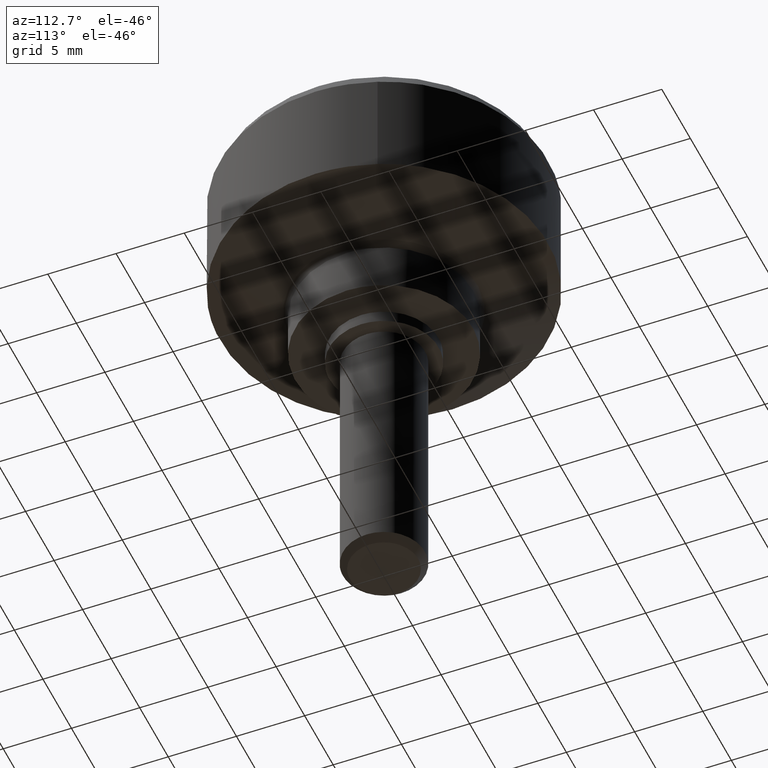
[diagram: clean part render]
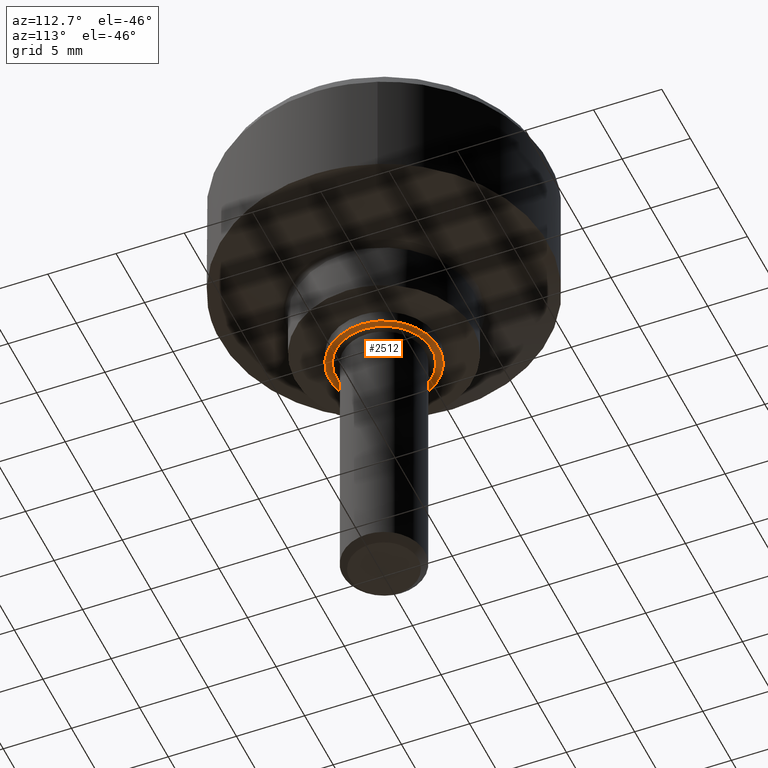
[diagram: same view with one face highlighted and labeled with its STEP entity id]
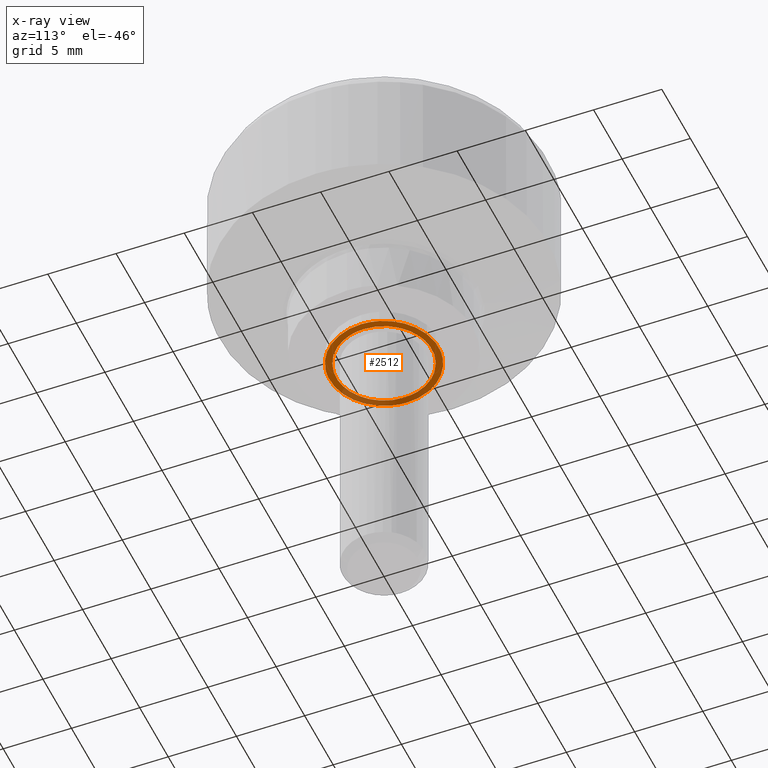
[diagram: x-ray of the same camera — body ghosted, the highlighted face saturated]
A machine part, auxiliary view. The second image highlights one B-rep face of the part: STEP entity #2512.
The next image is the same camera in x-ray: the body ghosted, the highlighted face saturated — about 27% of this face is hidden behind the body in this view.
In plain terms, the highlighted face is a freeform B-spline surface patch.
Its self-contained STEP definition (entity closure, byte-faithful):
#1094=CARTESIAN_POINT('',(-0.274603541583997,-3.489210927264015,-1.804112E-016));
#1095=VERTEX_POINT('',#1094);
#1101=CARTESIAN_POINT('',(-3.500000000000000,0.0,0.0));
#1102=VERTEX_POINT('',#1101);
#1103=CARTESIAN_POINT('',(-3.500000000000000,0.0,0.0));
#1104=CARTESIAN_POINT('',(-3.500000000000000,-3.235369784108316,0.0));
#1105=CARTESIAN_POINT('',(-0.274603541583997,-3.489210927264014,-1.804112E-016));
#1113=(BOUNDED_CURVE()B_SPLINE_CURVE(2,(#1103,#1104,#1105),.UNSPECIFIED.,.F.,.U.)B_SPLINE_CURVE_WITH_KNOTS((3,3),(0.0,0.236331462440237),.UNSPECIFIED.)CURVE()GEOMETRIC_REPRESENTATION_ITEM()RATIONAL_B_SPLINE_CURVE((1.0,0.723120469035954,0.969723693851907))REPRESENTATION_ITEM(''));
#1114=EDGE_CURVE('',#1102,#1095,#1113,.T.);
#1116=CARTESIAN_POINT('',(0.274603541583996,3.489210927264015,-7.355228E-016));
#1117=VERTEX_POINT('',#1116);
#1118=CARTESIAN_POINT('',(0.274603541583996,3.489210927264016,-7.355228E-016));
#1119=CARTESIAN_POINT('',(0.137513720153304,3.500000000000000,0.0));
#1120=CARTESIAN_POINT('',(0.0,3.500000000000000,0.0));
#1121=CARTESIAN_POINT('',(-3.500000000000000,3.500000000000000,0.0));
#1122=CARTESIAN_POINT('',(-3.500000000000000,0.0,0.0));
#1130=(BOUNDED_CURVE()B_SPLINE_CURVE(2,(#1118,#1119,#1120,#1121,#1122),.UNSPECIFIED.,.F.,.U.)B_SPLINE_CURVE_WITH_KNOTS((3,2,3),(0.736331462440237,0.750000000000000,1.0),.UNSPECIFIED.)CURVE()GEOMETRIC_REPRESENTATION_ITEM()RATIONAL_B_SPLINE_CURVE((0.969723693851907,0.983986312150594,1.0,0.707106781186547,1.0))REPRESENTATION_ITEM(''));
#1131=EDGE_CURVE('',#1117,#1102,#1130,.T.);
#1207=CARTESIAN_POINT('',(3.500000000000000,0.0,0.0));
#1208=VERTEX_POINT('',#1207);
#1209=CARTESIAN_POINT('',(3.500000000000000,0.0,0.0));
#1210=CARTESIAN_POINT('',(3.500000000000000,3.235369784108316,0.0));
#1211=CARTESIAN_POINT('',(0.274603541583996,3.489210927264016,-7.355228E-016));
#1219=(BOUNDED_CURVE()B_SPLINE_CURVE(2,(#1209,#1210,#1211),.UNSPECIFIED.,.F.,.U.)B_SPLINE_CURVE_WITH_KNOTS((3,3),(0.500000000000000,0.736331462440237),.UNSPECIFIED.)CURVE()GEOMETRIC_REPRESENTATION_ITEM()RATIONAL_B_SPLINE_CURVE((1.0,0.723120469035954,0.969723693851907))REPRESENTATION_ITEM(''));
#1220=EDGE_CURVE('',#1208,#1117,#1219,.T.);
#1222=CARTESIAN_POINT('',(-0.274603541583997,-3.489210927264014,-1.804112E-016));
#1223=CARTESIAN_POINT('',(-0.137513720153305,-3.500000000000000,0.0));
#1224=CARTESIAN_POINT('',(0.0,-3.500000000000000,0.0));
#1225=CARTESIAN_POINT('',(3.500000000000000,-3.500000000000000,0.0));
#1226=CARTESIAN_POINT('',(3.500000000000000,0.0,0.0));
#1234=(BOUNDED_CURVE()B_SPLINE_CURVE(2,(#1222,#1223,#1224,#1225,#1226),.UNSPECIFIED.,.F.,.U.)B_SPLINE_CURVE_WITH_KNOTS((3,2,3),(0.236331462440237,0.250000000000000,0.500000000000000),.UNSPECIFIED.)CURVE()GEOMETRIC_REPRESENTATION_ITEM()RATIONAL_B_SPLINE_CURVE((0.969723693851907,0.983986312150594,1.0,0.707106781186547,1.0))REPRESENTATION_ITEM(''));
#1235=EDGE_CURVE('',#1095,#1208,#1234,.T.);
#1301=CARTESIAN_POINT('',(0.244187562914090,-3.992539597057794,-4.336809E-017));
#1302=VERTEX_POINT('',#1301);
#1308=CARTESIAN_POINT('',(4.0,0.0,0.0));
#1309=VERTEX_POINT('',#1308);
#1310=CARTESIAN_POINT('',(4.0,0.0,0.0));
#1311=CARTESIAN_POINT('',(4.000000000000001,-3.762830495004439,0.0));
#1312=CARTESIAN_POINT('',(0.244187562914090,-3.992539597057794,-4.336809E-017));
#1320=(BOUNDED_CURVE()B_SPLINE_CURVE(2,(#1310,#1311,#1312),.UNSPECIFIED.,.F.,.U.)B_SPLINE_CURVE_WITH_KNOTS((3,3),(0.500000000000000,0.739333247269903),.UNSPECIFIED.)CURVE()GEOMETRIC_REPRESENTATION_ITEM()RATIONAL_B_SPLINE_CURVE((1.0,0.719603659352168,0.976072652543085))REPRESENTATION_ITEM(''));
#1321=EDGE_CURVE('',#1309,#1302,#1320,.T.);
#1323=CARTESIAN_POINT('',(-0.472132307392189,3.972038655941653,8.873213E-018));
#1324=VERTEX_POINT('',#1323);
#1325=CARTESIAN_POINT('',(-0.472132307392189,3.972038655941652,8.873213E-018));
#1326=CARTESIAN_POINT('',(-0.236894138510211,4.000000000000000,0.0));
#1327=CARTESIAN_POINT('',(0.0,4.0,0.0));
#1328=CARTESIAN_POINT('',(4.000000000000000,4.000000000000000,0.0));
#1329=CARTESIAN_POINT('',(4.0,0.0,0.0));
#1337=(BOUNDED_CURVE()B_SPLINE_CURVE(2,(#1325,#1326,#1327,#1328,#1329),.UNSPECIFIED.,.F.,.U.)B_SPLINE_CURVE_WITH_KNOTS((3,2,3),(0.229562670566571,0.250000000000000,0.500000000000000),.UNSPECIFIED.)CURVE()GEOMETRIC_REPRESENTATION_ITEM()RATIONAL_B_SPLINE_CURVE((0.956027140416131,0.976056179193169,1.0,0.707106781186548,1.0))REPRESENTATION_ITEM(''));
#1338=EDGE_CURVE('',#1324,#1309,#1337,.T.);
#1382=CARTESIAN_POINT('',(-4.0,0.0,0.0));
#1383=VERTEX_POINT('',#1382);
#1384=CARTESIAN_POINT('',(-4.0,0.0,0.0));
#1385=CARTESIAN_POINT('',(-4.0,3.552702275269009,0.0));
#1386=CARTESIAN_POINT('',(-0.472132307392189,3.972038655941652,8.873213E-018));
#1394=(BOUNDED_CURVE()B_SPLINE_CURVE(2,(#1384,#1385,#1386),.UNSPECIFIED.,.F.,.U.)B_SPLINE_CURVE_WITH_KNOTS((3,3),(0.0,0.229562670566571),.UNSPECIFIED.)CURVE()GEOMETRIC_REPRESENTATION_ITEM()RATIONAL_B_SPLINE_CURVE((1.0,0.731050601993379,0.956027140416131))REPRESENTATION_ITEM(''));
#1395=EDGE_CURVE('',#1383,#1324,#1394,.T.);
#1397=CARTESIAN_POINT('',(0.244187562914090,-3.992539597057794,-4.336809E-017));
#1398=CARTESIAN_POINT('',(0.122207746335920,-4.000000000000001,0.0));
#1399=CARTESIAN_POINT('',(0.0,-4.0,0.0));
#1400=CARTESIAN_POINT('',(-4.000000000000000,-4.000000000000000,0.0));
#1401=CARTESIAN_POINT('',(-4.0,0.0,0.0));
#1409=(BOUNDED_CURVE()B_SPLINE_CURVE(2,(#1397,#1398,#1399,#1400,#1401),.UNSPECIFIED.,.F.,.U.)B_SPLINE_CURVE_WITH_KNOTS((3,2,3),(0.739333247269903,0.750000000000000,1.0),.UNSPECIFIED.)CURVE()GEOMETRIC_REPRESENTATION_ITEM()RATIONAL_B_SPLINE_CURVE((0.976072652543085,0.987503121834379,1.0,0.707106781186548,1.0))REPRESENTATION_ITEM(''));
#1410=EDGE_CURVE('',#1302,#1383,#1409,.T.);
#2495=CARTESIAN_POINT('',(-4.399599984494448,-4.399502853344671,0.0));
#2496=CARTESIAN_POINT('',(4.399600199071169,-4.399502853344671,0.0));
#2497=CARTESIAN_POINT('',(-4.399599984494448,4.399527243565313,0.0));
#2498=CARTESIAN_POINT('',(4.399600199071169,4.399527243565313,0.0));
#2499=B_SPLINE_SURFACE_WITH_KNOTS('',1,1,((#2495,#2497),(#2496,#2498)),.UNSPECIFIED.,.F.,.F.,.U.,(2,2),(2,2),(0.0,8.799200183565617),(0.0,8.799030096909984),.UNSPECIFIED.);
#2500=ORIENTED_EDGE('',*,*,#1395,.T.);
#2501=ORIENTED_EDGE('',*,*,#1338,.T.);
#2502=ORIENTED_EDGE('',*,*,#1321,.T.);
#2503=ORIENTED_EDGE('',*,*,#1410,.T.);
#2504=EDGE_LOOP('',(#2500,#2501,#2502,#2503));
#2505=FACE_OUTER_BOUND('',#2504,.T.);
#2506=ORIENTED_EDGE('',*,*,#1220,.T.);
#2507=ORIENTED_EDGE('',*,*,#1131,.T.);
#2508=ORIENTED_EDGE('',*,*,#1114,.T.);
#2509=ORIENTED_EDGE('',*,*,#1235,.T.);
#2510=EDGE_LOOP('',(#2506,#2507,#2508,#2509));
#2511=FACE_BOUND('',#2510,.T.);
#2512=ADVANCED_FACE('',(#2505,#2511),#2499,.F.);